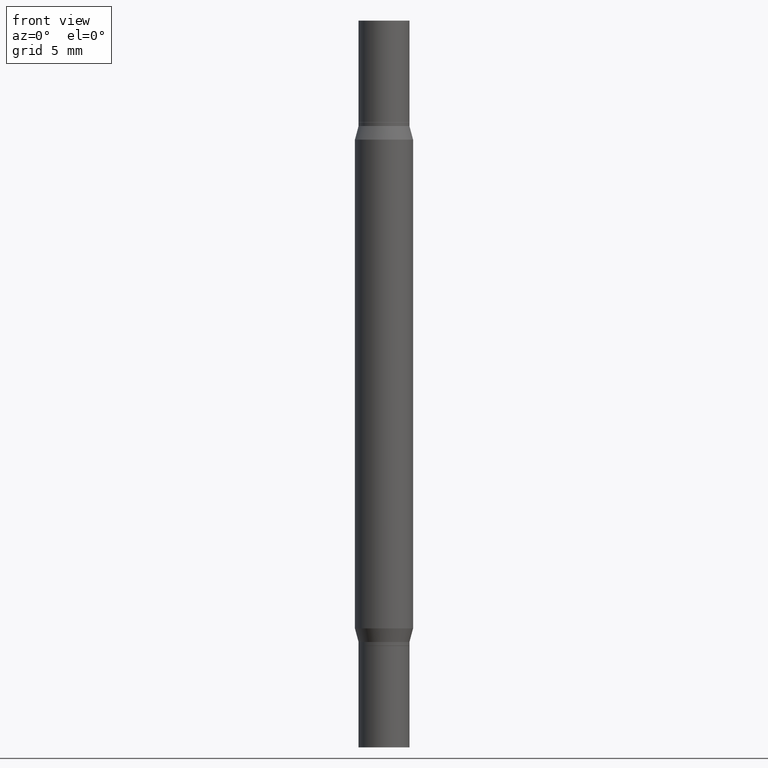
[diagram: clean part render]
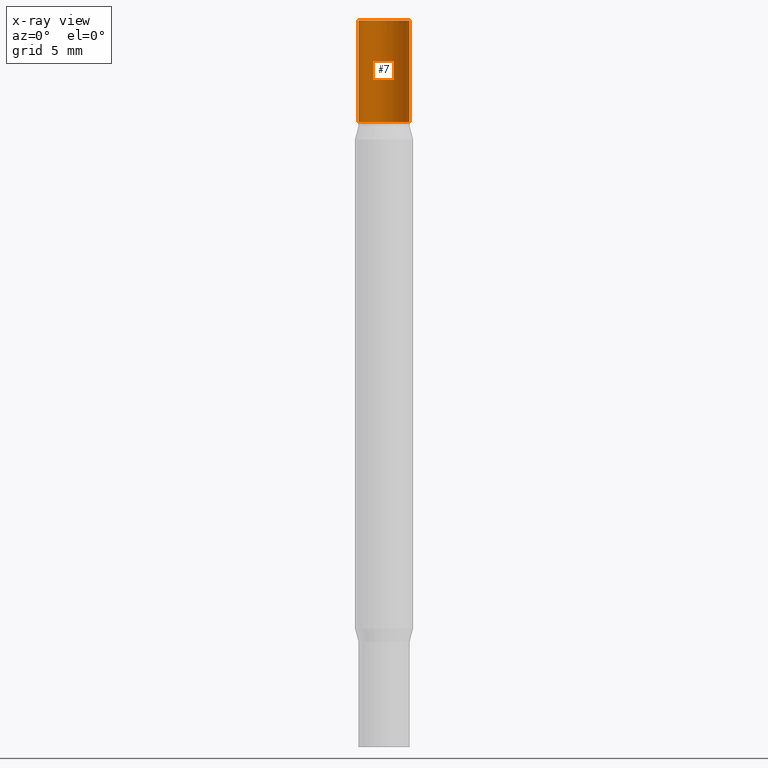
[diagram: x-ray — body ghosted, one internal face saturated and labeled with its STEP entity id]
A machine part, front view, then the same camera in x-ray: the body is ghosted and one INTERNAL B-rep face — a face not visible from any outside direction — is saturated and labeled: STEP entity #7.
In plain terms, the highlighted cylindrical surface (edge-blend (fillet) strip) has radius 1.7501 mm, axis along (-0, -0, -1).
Its self-contained STEP definition (entity closure, byte-faithful):
#2 = VECTOR ( 'NONE', #112, 39.37007874015748143 ) ;
#7 = ADVANCED_FACE ( 'NONE', ( #490 ), #414, .T. ) ;
#31 = CARTESIAN_POINT ( 'NONE',  ( 0.06890000000000007230, -7.354425800964435942E-15, -1.968499999999999694 ) ) ;
#35 = CARTESIAN_POINT ( 'NONE',  ( -0.06890000000000007230, -8.163773080062677072E-18, 2.731847993664279982E-16 ) ) ;
#51 = EDGE_LOOP ( 'NONE', ( #89, #505, #862, #223 ) ) ;
#80 = EDGE_CURVE ( 'NONE', #339, #745, #320, .T. ) ;
#89 = ORIENTED_EDGE ( 'NONE', *, *, #159, .F. ) ;
#112 = DIRECTION ( 'NONE',  ( -2.445468806185136877E-29, -3.491805094961123683E-15, -1.000000000000000000 ) ) ;
#130 = AXIS2_PLACEMENT_3D ( 'NONE', #801, #410, #977 ) ;
#149 = CARTESIAN_POINT ( 'NONE',  ( 0.000000000000000000, -6.873299672471851415E-15, -1.968499999999999694 ) ) ;
#151 = DIRECTION ( 'NONE',  ( 1.000000000000000000, -6.982962677686265922E-15, 0.000000000000000000 ) ) ;
#159 = EDGE_CURVE ( 'NONE', #593, #479, #705, .T. ) ;
#190 = CARTESIAN_POINT ( 'NONE',  ( -0.06890000000000007230, -8.163773080062737161E-18, -0.2755999999999999006 ) ) ;
#223 = ORIENTED_EDGE ( 'NONE', *, *, #486, .T. ) ;
#251 = CARTESIAN_POINT ( 'NONE',  ( 0.06890000000000007230, -1.443148955704749777E-15, -0.2755999999999999006 ) ) ;
#297 = DIRECTION ( 'NONE',  ( -2.445468806185136597E-29, -3.491805094961124077E-15, -1.000000000000000000 ) ) ;
#320 = LINE ( 'NONE', #31, #2 ) ;
#329 = CARTESIAN_POINT ( 'NONE',  ( -0.06890000000000007230, -6.400611360425392691E-15, -1.968499999999999694 ) ) ;
#339 = VERTEX_POINT ( 'NONE', #549 ) ;
#410 = DIRECTION ( 'NONE',  ( 2.445468806185136597E-29, 3.491805094961124077E-15, 1.000000000000000000 ) ) ;
#414 = CYLINDRICAL_SURFACE ( 'NONE', #729, 0.06890000000000007230 ) ;
#479 = VERTEX_POINT ( 'NONE', #190 ) ;
#486 = EDGE_CURVE ( 'NONE', #745, #479, #940, .T. ) ;
#490 = FACE_OUTER_BOUND ( 'NONE', #51, .T. ) ;
#505 = ORIENTED_EDGE ( 'NONE', *, *, #663, .F. ) ;
#549 = CARTESIAN_POINT ( 'NONE',  ( 0.06890000000000007230, -4.808074715334629460E-16, 2.731847993664263218E-16 ) ) ;
#586 = DIRECTION ( 'NONE',  ( 1.000000000000000000, -6.982962677686258822E-15, 0.000000000000000000 ) ) ;
#593 = VERTEX_POINT ( 'NONE', #35 ) ;
#595 = CARTESIAN_POINT ( 'NONE',  ( 4.813905344975441835E-29, 3.186569591213228268E-19, 2.731847993664263218E-16 ) ) ;
#624 = DIRECTION ( 'NONE',  ( -2.445468806185136877E-29, -3.491805094961123683E-15, -1.000000000000000000 ) ) ;
#659 = CIRCLE ( 'NONE', #895, 0.06890000000000007230 ) ;
#663 = EDGE_CURVE ( 'NONE', #339, #593, #659, .T. ) ;
#679 = DIRECTION ( 'NONE',  ( 2.445468806185136597E-29, 3.491805094961124077E-15, 1.000000000000000000 ) ) ;
#705 = LINE ( 'NONE', #329, #731 ) ;
#729 = AXIS2_PLACEMENT_3D ( 'NONE', #149, #297, #586 ) ;
#731 = VECTOR ( 'NONE', #624, 39.37007874015748143 ) ;
#745 = VERTEX_POINT ( 'NONE', #251 ) ;
#801 = CARTESIAN_POINT ( 'NONE',  ( 4.139934141990817236E-29, -9.620228272121656440E-16, -0.2755999999999999006 ) ) ;
#862 = ORIENTED_EDGE ( 'NONE', *, *, #80, .T. ) ;
#895 = AXIS2_PLACEMENT_3D ( 'NONE', #595, #679, #151 ) ;
#940 = CIRCLE ( 'NONE', #130, 0.06890000000000007230 ) ;
#977 = DIRECTION ( 'NONE',  ( 1.000000000000000000, -6.982962677686265922E-15, 0.000000000000000000 ) ) ;